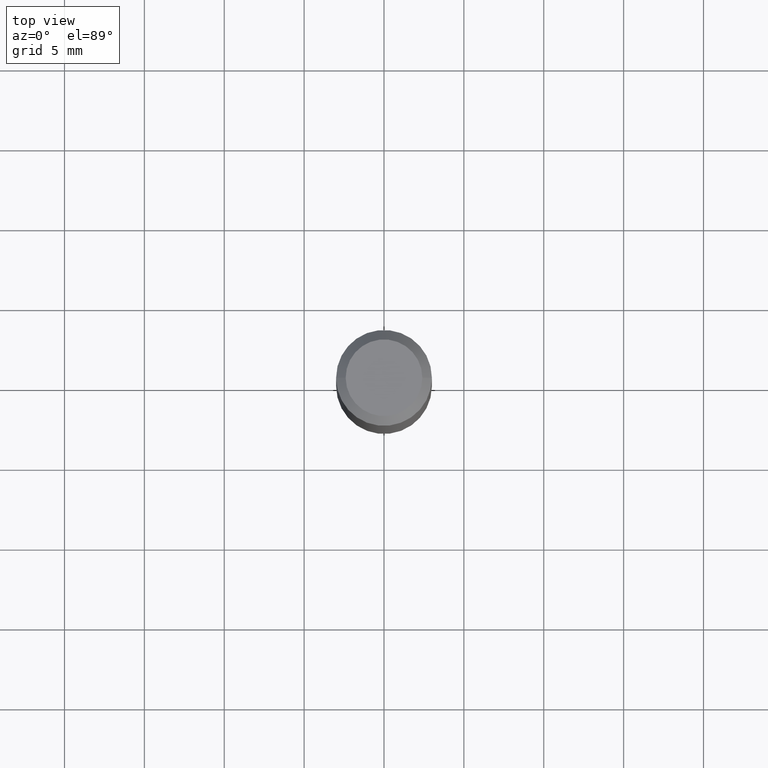
[diagram: clean part render]
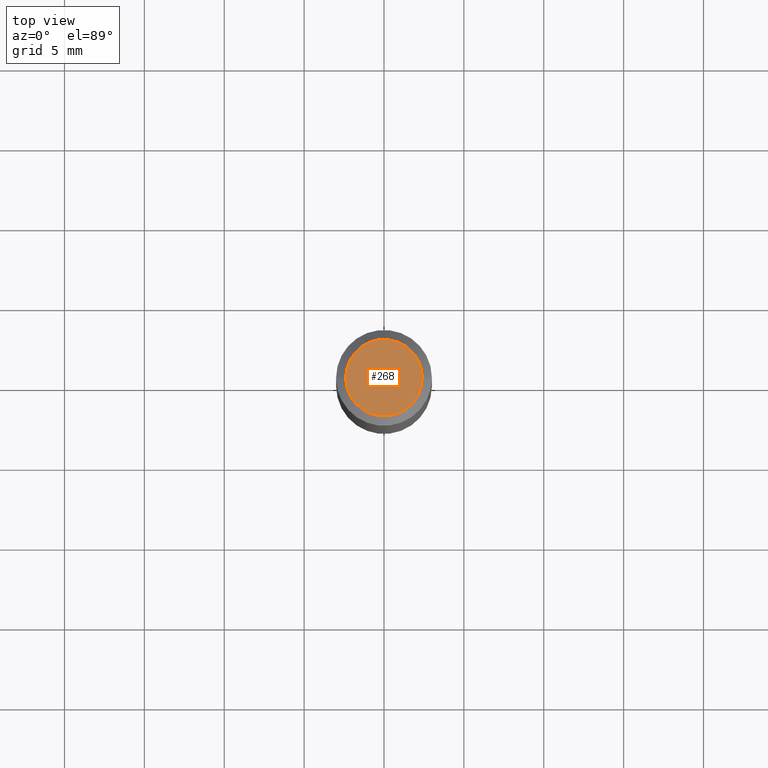
[diagram: same view with one face highlighted and labeled with its STEP entity id]
A machine part, top view. The second image highlights one B-rep face of the part: STEP entity #268.
In plain terms, the highlighted planar face has unit normal (0, -0, -1).
Its self-contained STEP definition (entity closure, byte-faithful):
#10 = CARTESIAN_POINT ( 'NONE',  ( 7.545787641473140628E-46, -1.077338491108201769E-31, -3.085620075131671975E-17 ) ) ;
#88 = EDGE_LOOP ( 'NONE', ( #377, #475 ) ) ;
#97 = FACE_OUTER_BOUND ( 'NONE', #88, .T. ) ;
#117 = CARTESIAN_POINT ( 'NONE',  ( 7.545787641473140628E-46, -1.077338491108201769E-31, -3.085620075131671975E-17 ) ) ;
#126 = CIRCLE ( 'NONE', #439, 0.09447999999999998066 ) ;
#134 = DIRECTION ( 'NONE',  ( 1.000000000000000000, -6.982962677686267499E-15, 4.875432709231658792E-29 ) ) ;
#159 = VERTEX_POINT ( 'NONE', #363 ) ;
#174 = DIRECTION ( 'NONE',  ( -2.445468806185136597E-29, 3.491481338843145583E-15, 1.000000000000000000 ) ) ;
#188 = DIRECTION ( 'NONE',  ( -1.000000000000000000, 6.982962677686265922E-15, -4.876176775795935793E-29 ) ) ;
#245 = CARTESIAN_POINT ( 'NONE',  ( 0.09447999999999998066, -7.704367267948738690E-16, -3.085620075131172158E-17 ) ) ;
#254 = AXIS2_PLACEMENT_3D ( 'NONE', #383, #424, #188 ) ;
#255 = EDGE_CURVE ( 'NONE', #394, #159, #262, .T. ) ;
#256 = PLANE ( 'NONE',  #254 ) ;
#262 = CIRCLE ( 'NONE', #378, 0.09447999999999998066 ) ;
#268 = ADVANCED_FACE ( 'NONE', ( #97 ), #256, .F. ) ;
#274 = DIRECTION ( 'NONE',  ( -2.445468806185136597E-29, 3.491481338843145583E-15, 1.000000000000000000 ) ) ;
#295 = DIRECTION ( 'NONE',  ( 1.000000000000000000, -6.982962677686267499E-15, 4.875432709231658792E-29 ) ) ;
#325 = EDGE_CURVE ( 'NONE', #159, #394, #126, .T. ) ;
#363 = CARTESIAN_POINT ( 'NONE',  ( -0.09447999999999998066, 7.009847083995354710E-16, -3.085620075132147757E-17 ) ) ;
#377 = ORIENTED_EDGE ( 'NONE', *, *, #325, .T. ) ;
#378 = AXIS2_PLACEMENT_3D ( 'NONE', #10, #174, #295 ) ;
#383 = CARTESIAN_POINT ( 'NONE',  ( 3.772893820736570314E-46, -5.386692455541008845E-32, -1.542810037565835988E-17 ) ) ;
#394 = VERTEX_POINT ( 'NONE', #245 ) ;
#424 = DIRECTION ( 'NONE',  ( 2.438088387897960049E-29, -3.491481338843145188E-15, -1.000000000000000000 ) ) ;
#439 = AXIS2_PLACEMENT_3D ( 'NONE', #117, #274, #134 ) ;
#475 = ORIENTED_EDGE ( 'NONE', *, *, #255, .T. ) ;